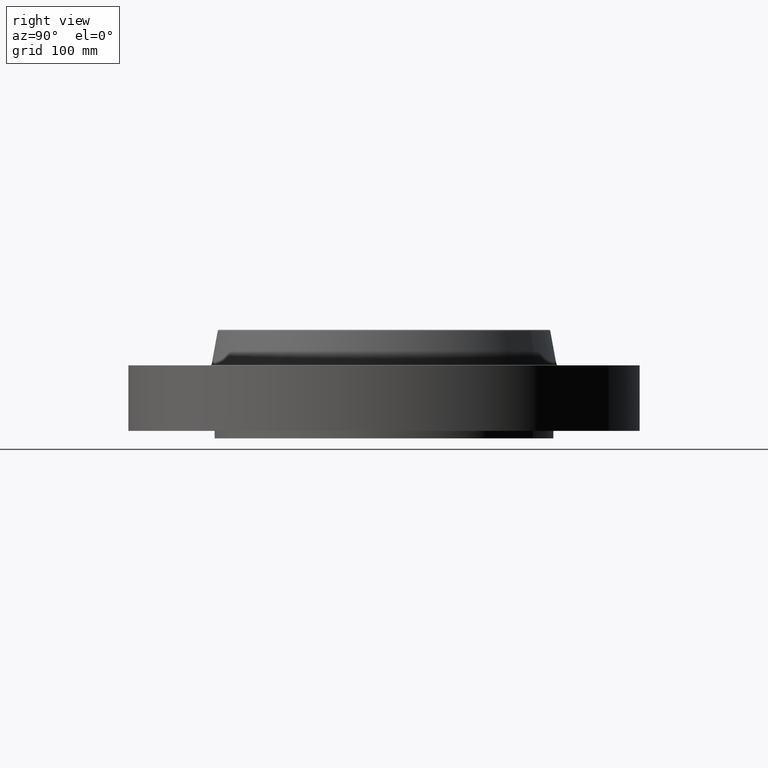
[diagram: clean part render]
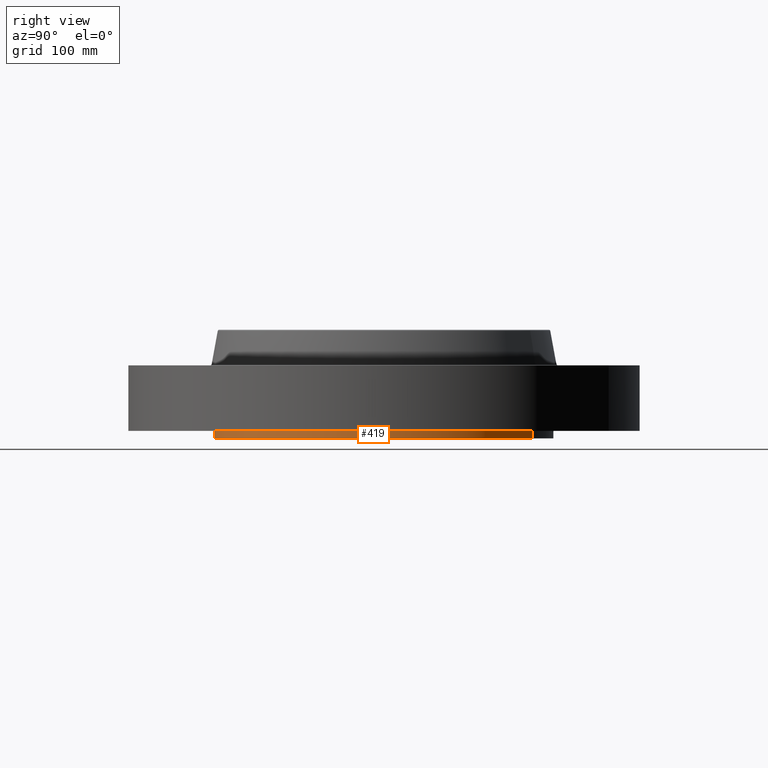
[diagram: same view with one face highlighted and labeled with its STEP entity id]
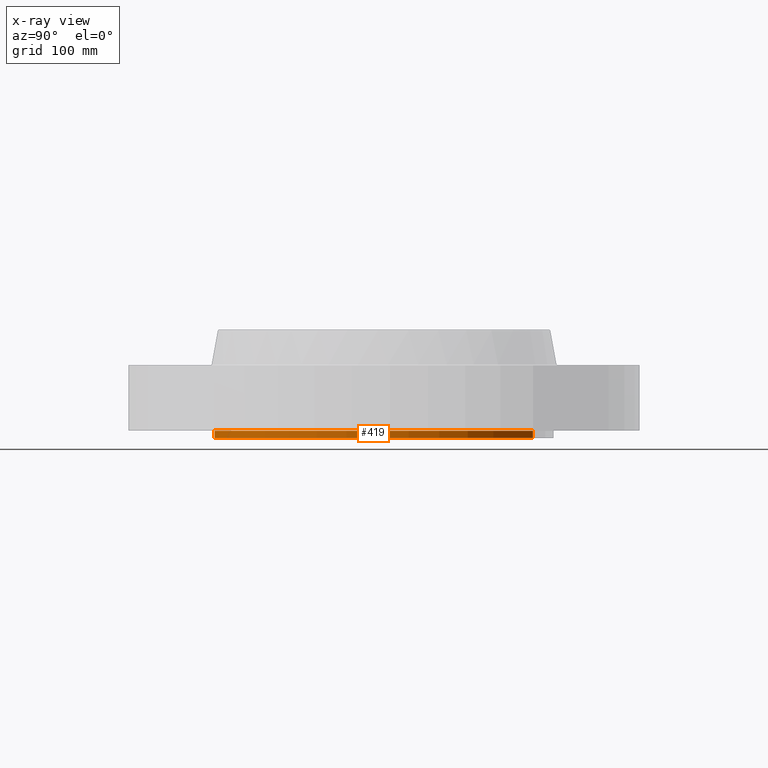
[diagram: x-ray of the same camera — body ghosted, the highlighted face saturated]
A machine part, right view. The second image highlights one B-rep face of the part: STEP entity #419.
The next image is the same camera in x-ray: the body ghosted, the highlighted face saturated — about 0% of this face is hidden behind the body in this view.
In plain terms, the highlighted cylindrical surface (partial cylindrical patch) has radius 180.975 mm, axis along (0, 0, -1).
Its self-contained STEP definition (entity closure, byte-faithful):
#366=AXIS2_PLACEMENT_3D('Cylinder Axis2P3D',#363,#364,#365) ;
#405=AXIS2_PLACEMENT_3D('Circle Axis2P3D',#403,#404,$) ;
#410=AXIS2_PLACEMENT_3D('Circle Axis2P3D',#408,#409,$) ;
#363=CARTESIAN_POINT('Axis2P3D Location',(0.,0.,1.96875000001)) ;
#372=CARTESIAN_POINT('Vertex',(-3.41590696257,-6.25277575349,-0.312500000001)) ;
#374=CARTESIAN_POINT('Vertex',(3.41590696257,6.25277575349,-0.312500000001)) ;
#377=CARTESIAN_POINT('Line Origine',(-3.41590696257,-6.25277575349,-0.156250000001)) ;
#381=CARTESIAN_POINT('Vertex',(-3.41590696257,-6.25277575349,8.39223703654E-016)) ;
#388=CARTESIAN_POINT('Vertex',(3.41590696257,6.25277575349,8.39223703654E-016)) ;
#391=CARTESIAN_POINT('Line Origine',(3.41590696257,6.25277575349,-0.156250000001)) ;
#403=CARTESIAN_POINT('Axis2P3D Location',(0.,0.,-0.312500000001)) ;
#408=CARTESIAN_POINT('Axis2P3D Location',(0.,0.,8.39223703654E-016)) ;
#364=DIRECTION('Axis2P3D Direction',(0.,0.,-0.0393700787402)) ;
#365=DIRECTION('Axis2P3D XDirection',(0.0188750212049,0.0345504945626,0.)) ;
#378=DIRECTION('Vector Direction',(0.,0.,-0.0393700787402)) ;
#392=DIRECTION('Vector Direction',(0.,0.,-0.0393700787402)) ;
#404=DIRECTION('Axis2P3D Direction',(0.,0.,-0.0393700787402)) ;
#409=DIRECTION('Axis2P3D Direction',(0.,0.,-0.0393700787402)) ;
#379=VECTOR('Line Direction',#378,0.0393700787402) ;
#393=VECTOR('Line Direction',#392,0.0393700787402) ;
#414=ORIENTED_EDGE('',*,*,#407,.F.) ;
#415=ORIENTED_EDGE('',*,*,#395,.T.) ;
#416=ORIENTED_EDGE('',*,*,#412,.T.) ;
#417=ORIENTED_EDGE('',*,*,#383,.F.) ;
#419=ADVANCED_FACE('PartBody',(#418),#367,.T.) ;
#406=CIRCLE('generated circle',#405,7.12500000003) ;
#411=CIRCLE('generated circle',#410,7.12500000003) ;
#367=CYLINDRICAL_SURFACE('generated cylinder',#366,7.12500000003) ;
#383=EDGE_CURVE('',#373,#382,#380,.F.) ;
#395=EDGE_CURVE('',#375,#389,#394,.F.) ;
#407=EDGE_CURVE('',#375,#373,#406,.T.) ;
#412=EDGE_CURVE('',#389,#382,#411,.T.) ;
#413=EDGE_LOOP('',(#414,#415,#416,#417)) ;
#418=FACE_OUTER_BOUND('',#413,.T.) ;
#380=LINE('Line',#377,#379) ;
#394=LINE('Line',#391,#393) ;
#373=VERTEX_POINT('',#372) ;
#375=VERTEX_POINT('',#374) ;
#382=VERTEX_POINT('',#381) ;
#389=VERTEX_POINT('',#388) ;